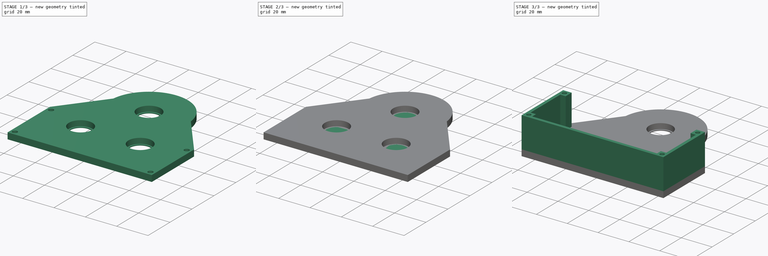
[diagram: build sequence overview — one tinted view per stage of 3, left to right]
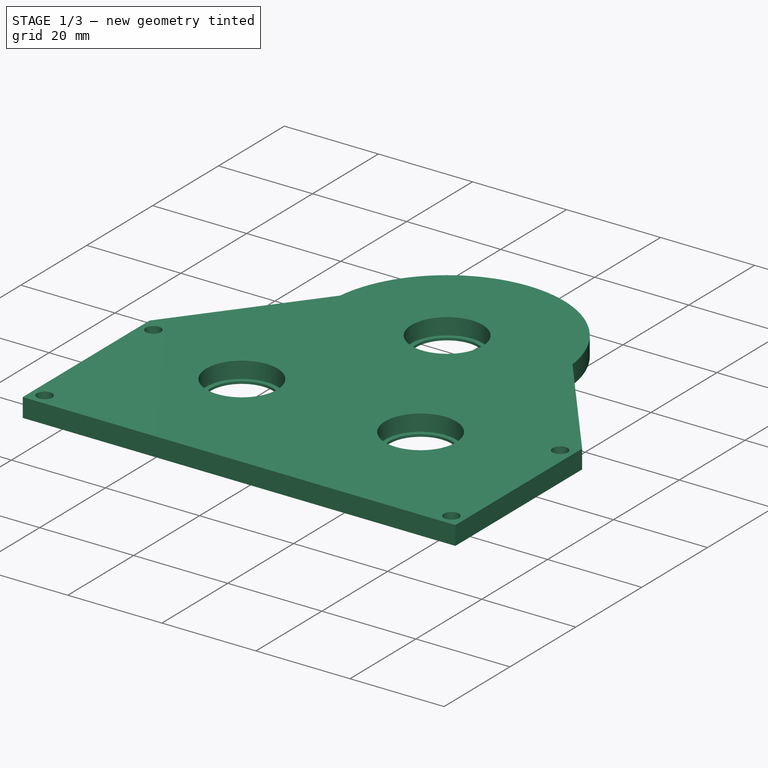
[diagram: stage 1 of 3 — iso view after this stage's code; geometry added in this stage tinted green]
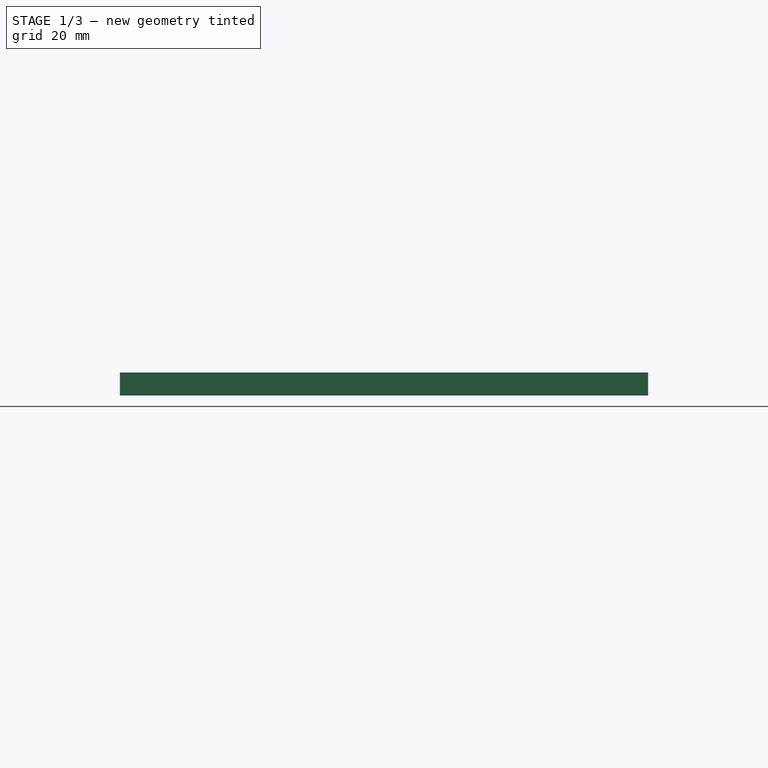
[diagram: stage 1 of 3 — front view after this stage's code; geometry added in this stage tinted green]
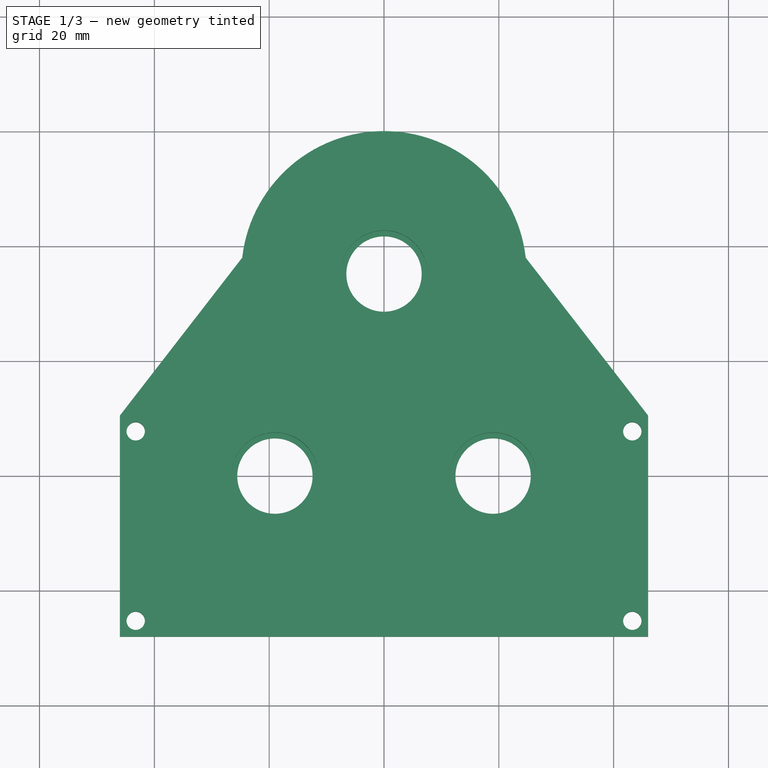
[diagram: stage 1 of 3 — top view after this stage's code; geometry added in this stage tinted green]
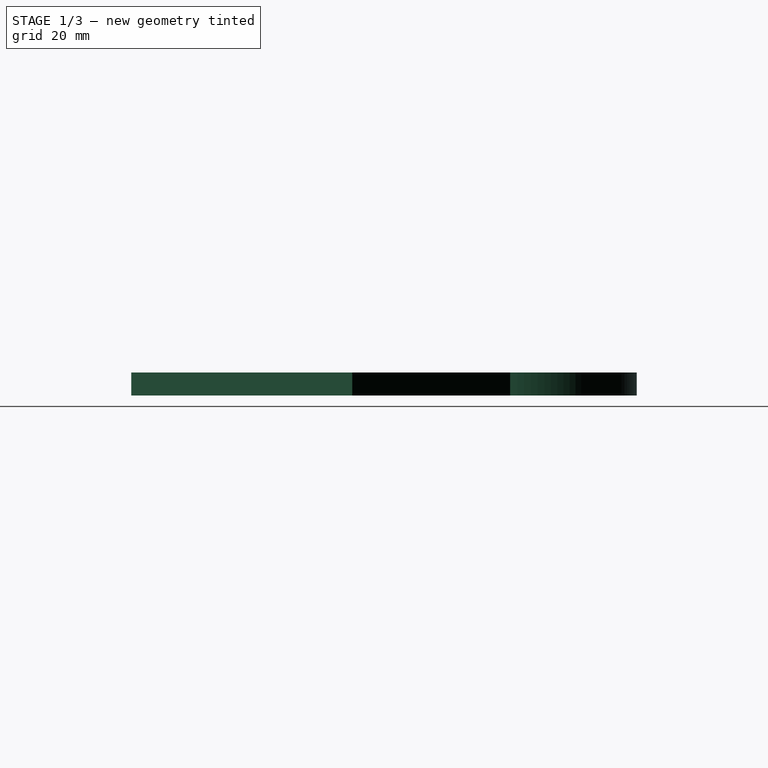
[diagram: stage 1 of 3 — right view after this stage's code; geometry added in this stage tinted green]
FCSTD DOCUMENT  (FreeCAD 0.20R29177 (Git))
Label: transmissionHolder1
License: All rights reserved
LicenseURL: http://en.wikipedia.org/wiki/All_rights_reserved
objects: Sketcher::SketchObject×5, PartDesign::Pocket×3, PartDesign::Pad×2, PartDesign::Body×2, Spreadsheet::Sheet×1, Part::Feature×1, PartDesign::FeatureBase×1
note: 19 computed .brp shape members not serialized (recipe doc carries the construction recipe); baked Part::Feature solids carry a one-line shape summary decoded from their .brp

FEATURE [PartDesign::Body] Body
  Group = -> [Sketch,Pad,Sketch001,Pocket,Sketch002,Pocket001,Sketch003,Pad001]
  Origin = -> Origin
  Tip = -> Pad001
FEATURE [Part::Feature] Pocket001001  label="Pocket001BasePlate001"
  shape: bbox 92 x 88.05 x 4 mm, 17 faces (baked)
FEATURE [PartDesign::FeatureBase] BaseFeature
  BaseFeature = -> Pocket001001
FEATURE [Sketcher::SketchObject] Sketch004
  ExternalGeometry = -> [BaseFeature]
  FullyConstrained = true
  MapMode = 5
  Placement = pos=(0,0,4) rot=(0,0,1;0rad)
  Support = -> [BaseFeature]
  expr: Constraints[10] = Spreadsheet.screwSqureWidth / 2
  expr: Constraints[11] = Spreadsheet.screwSqureWidth / 2
  expr: Constraints[3] = Spreadsheet.screwRPass
  expr: Constraints[4] = Spreadsheet.screwSqureWidth / 2
  expr: Constraints[5] = Spreadsheet.screwSqureWidth / 2
  expr: Constraints[6] = Spreadsheet.screwSqureWidth / 2
  expr: Constraints[7] = Spreadsheet.screwSqureWidth / 2
  expr: Constraints[8] = Spreadsheet.screwSqureWidth / 2
  expr: Constraints[9] = Spreadsheet.screwSqureWidth / 2
  sketch-geometry (4):
    g0: Circle CenterX=-43.25 CenterY=-25.25 CenterZ=0 NormalX=0 NormalY=0 NormalZ=1 AngleXU=0 Radius=1.6
    g1: Circle CenterX=-43.25 CenterY=7.75 CenterZ=0 NormalX=0 NormalY=0 NormalZ=1 AngleXU=0 Radius=1.6
    g2: Circle CenterX=43.25 CenterY=-25.25 CenterZ=0 NormalX=0 NormalY=0 NormalZ=1 AngleXU=0 Radius=1.6
    g3: Circle CenterX=43.25 CenterY=7.75 CenterZ=0 NormalX=0 NormalY=0 NormalZ=1 AngleXU=0 Radius=1.6
  constraints (12):
    c: Equal(g1,g0)
    c: Equal(g0,g3)
    c: Equal(g3,g2)
    c: Radius(g3) = 1.6
    c: DistanceY(g-5,g2) = 2.75
    c: DistanceY(g-4,g0) = 2.75
    c: DistanceY(g1,g-3) = 2.75
    c: DistanceY(g3,g-5) = 2.75
    c: DistanceX(g3,g-5) = 2.75
    c: DistanceX(g-3,g1) = 2.75
    c: DistanceX(g-4,g0) = 2.75
    c: DistanceX(g2,g-5) = 2.75
FEATURE [PartDesign::Pocket] Pocket001002
  BaseFeature = -> BaseFeature
  Direction = (0,0,-1)
  Length = 5
  Length2 = 5
  Profile = -> Sketch004
  ReferenceAxis = -> Sketch004 [N_Axis]
  Type = 0
FEATURE [PartDesign::Body] Body001
  BaseFeature = -> Pocket001001
  Group = -> [BaseFeature,Sketch004,Pocket001002]
  Origin = -> Origin001
  Tip = -> Pocket001002
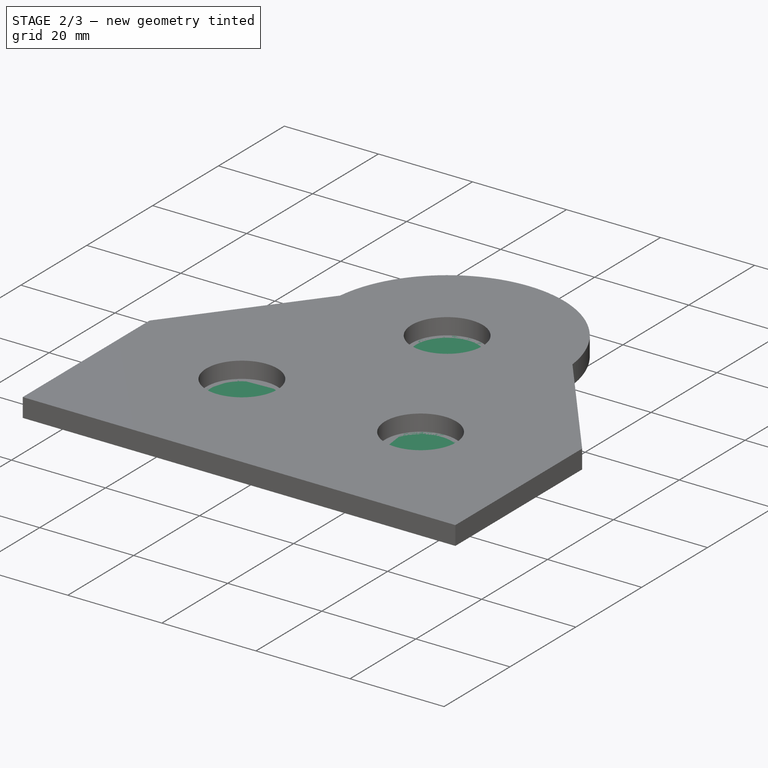
[diagram: stage 2 of 3 — iso view after this stage's code; geometry added in this stage tinted green]
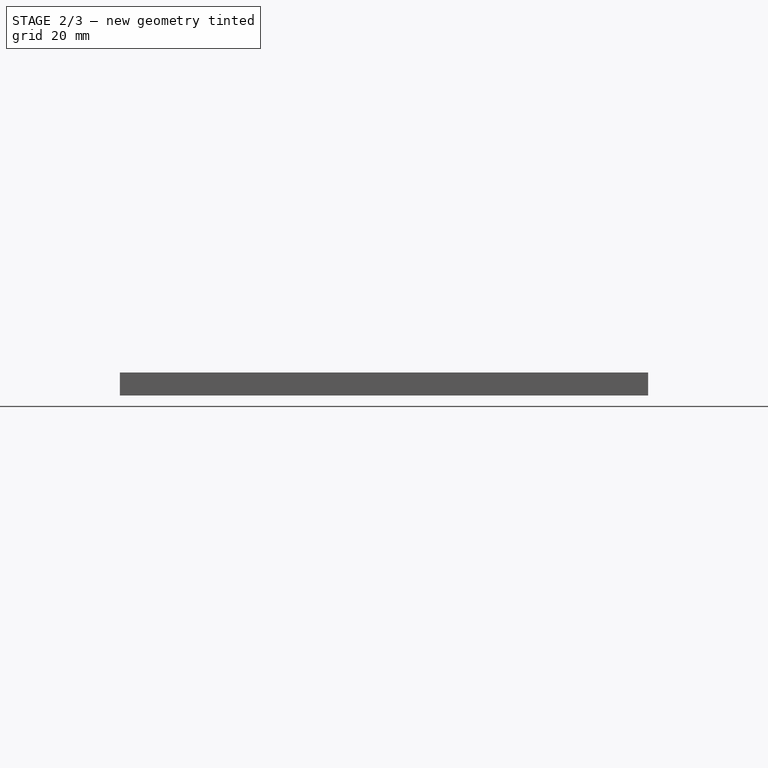
[diagram: stage 2 of 3 — front view after this stage's code; geometry added in this stage tinted green]
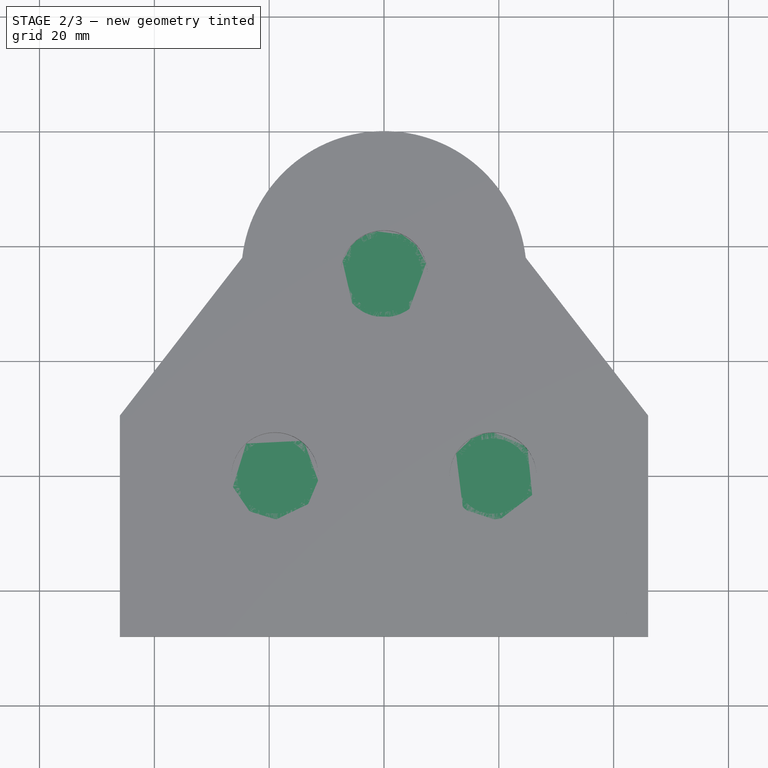
[diagram: stage 2 of 3 — top view after this stage's code; geometry added in this stage tinted green]
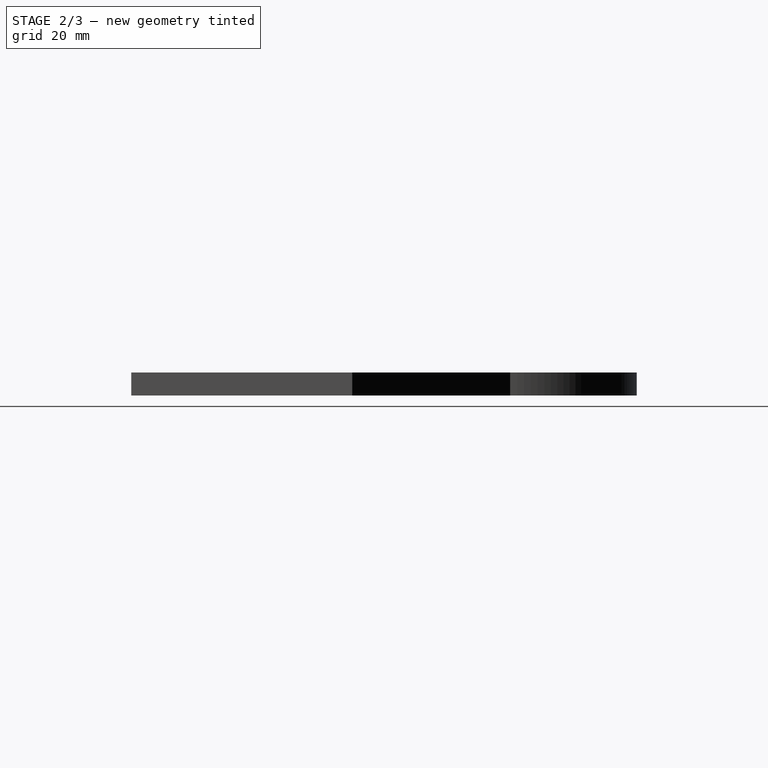
[diagram: stage 2 of 3 — right view after this stage's code; geometry added in this stage tinted green]
FEATURE [Sketcher::SketchObject] Sketch
  FullyConstrained = false
  MapMode = 5
  Support = -> [XY_Plane]
  expr: Constraints[37] = Spreadsheet.screwSqureWidth
  sketch-geometry (15):
    g0: Circle CenterX=0 CenterY=35.1994 CenterZ=0 NormalX=0 NormalY=0 NormalZ=1 AngleXU=0 Radius=17.5
    g1: Circle CenterX=19 CenterY=0 CenterZ=0 NormalX=0 NormalY=0 NormalZ=1 AngleXU=0 Radius=17.5
    g2: Circle CenterX=-19 CenterY=0 CenterZ=0 NormalX=0 NormalY=0 NormalZ=1 AngleXU=0 Radius=17.5
    g3: LineSegment StartX=0 StartY=35.1994 StartZ=0 EndX=19 EndY=0 EndZ=0
    g4: LineSegment StartX=0 StartY=35.1994 StartZ=0 EndX=-19 EndY=0 EndZ=0
    g5: LineSegment StartX=46 StartY=10.5 StartZ=0 EndX=46 EndY=-28 EndZ=0
    g6: LineSegment StartX=46 StartY=-28 StartZ=0 EndX=-46 EndY=-28 EndZ=0
    g7: LineSegment StartX=-46 StartY=-28 StartZ=0 EndX=-46 EndY=10.5 EndZ=0
    g8: ArcOfCircle CenterX=-0.00622902 CenterY=35.1994 CenterZ=0 NormalX=0 NormalY=0 NormalZ=1 AngleXU=0 Radius=24.85 StartAngle=0.112579 EndAngle=3.02865
    g9: LineSegment StartX=-46 StartY=10.5 StartZ=0 EndX=-24.6979 EndY=38 EndZ=0
    g10: LineSegment StartX=24.6865 StartY=37.9911 StartZ=0 EndX=46 EndY=10.5 EndZ=0
    g11: LineSegment StartX=-46 StartY=10.5 StartZ=0 EndX=-40.5 EndY=10.5 EndZ=0
    g12: LineSegment StartX=-40.5 StartY=10.5 StartZ=0 EndX=-40.5 EndY=4.05411 EndZ=0
    g13: LineSegment StartX=-40.5 StartY=4.05411 StartZ=0 EndX=-46 EndY=4.05411 EndZ=0
    g14: LineSegment StartX=-46 StartY=4.05411 StartZ=0 EndX=-46 EndY=10.5 EndZ=0
  constraints (38):
    c: Radius(g0) = 17.5
    c: Radius(g1) = 17.5
    c: Radius(g2) = 17.5
    c: DistanceX(g2,g1) = 38
    c: PointOnObject(g1,g-1)
    c: PointOnObject(g2,g-1)
    c: Coincident(g3,g0)
    c: Coincident(g3,g1)
    c: Coincident(g4,g3)
    c: Coincident(g4,g2)
    c: Distance(g3) = 40
    c: Coincident(g5,g6)
    c: Coincident(g6,g7)
    c: Vertical(g5)
    c: Vertical(g7)
    c: Coincident(g8,g9)
    c: Coincident(g8,g10)
    c: Equal(g3,g4)
    c: Coincident(g10,g5)
    c: Coincident(g9,g7)
    c: Equal(g5,g7)
    c: DistanceX(g6,g6) = 92
    c: Symmetric(g5,g6,g-2)
    c: DistanceY(g5,g-1) = 28
    c: Radius(g8) = 24.85
    c: DistanceY(g-1,g7) = 10.5
    c: DistanceY(g-1,g8) = 38
    c: Equal(g9,g10)
    c: Coincident(g11,g12)
    c: Coincident(g12,g13)
    c: Coincident(g13,g14)
    c: Coincident(g14,g11)
    c: Horizontal(g11)
    c: Horizontal(g13)
    c: Vertical(g12)
    c: Vertical(g14)
    c: Coincident(g11,g7)
    c: DistanceX(g11,g11) = 5.5
FEATURE [Spreadsheet::Sheet] Spreadsheet
  cells = A2=bearingSocketR; B2(bearingSocketR)=7.56; A3=topHoleY; B3(topHoleY)=35.2; A4=bottomHoleX; B4(bottomHoleX)=19; A5=bearingSocketOpenR; B5(bearingSocketOpenR)==B2 - 1; A6=sideWallWidth; B6(sideWallWidth)=2; A7=bottomWallWidth; B7(bottomWallWidth)=2; A8=screwSqureWidth; B8(screwSqureWidth)=5.5; A9=screwRTight; B9(screwRTight)=1.4; A10=screwRPass; B10(screwRPass)=1.6
FEATURE [PartDesign::Pad] Pad
  Direction = (0,0,1)
  Length = 4
  Length2 = 10
  Profile = -> Sketch
  ReferenceAxis = -> Sketch [N_Axis]
  Type = 0
FEATURE [Sketcher::SketchObject] Sketch001
  FullyConstrained = true
  MapMode = 5
  Placement = pos=(0,0,4) rot=(0,0,1;0rad)
  Support = -> [Pad]
  expr: Constraints[3] = Spreadsheet.bottomHoleX
  expr: Constraints[4] = Spreadsheet.bottomHoleX
  expr: Constraints[5] = Spreadsheet.topHoleY
  expr: Constraints[6] = Spreadsheet.bearingSocketR
  sketch-geometry (3):
    g0: Circle CenterX=0 CenterY=35.2 CenterZ=0 NormalX=0 NormalY=0 NormalZ=1 AngleXU=0 Radius=7.56
    g1: Circle CenterX=-19 CenterY=0 CenterZ=0 NormalX=0 NormalY=0 NormalZ=1 AngleXU=0 Radius=7.56
    g2: Circle CenterX=19 CenterY=0 CenterZ=0 NormalX=0 NormalY=0 NormalZ=1 AngleXU=0 Radius=7.56
  constraints (9):
    c: PointOnObject(g0,g-2)
    c: PointOnObject(g1,g-1)
    c: PointOnObject(g2,g-1)
    c: DistanceX(g-1,g2) = 19
    c: DistanceX(g1,g-1) = 19
    c: DistanceY(g-1,g0) = 35.2
    c: Radius(g0) = 7.56
    c: Equal(g0,g1)
    c: Equal(g2,g0)
FEATURE [PartDesign::Pocket] Pocket
  BaseFeature = -> Pad
  Direction = (0,0,-1)
  Length = 3.5
  Length2 = 5
  Profile = -> Sketch001
  ReferenceAxis = -> Sketch001 [N_Axis]
  Type = 0
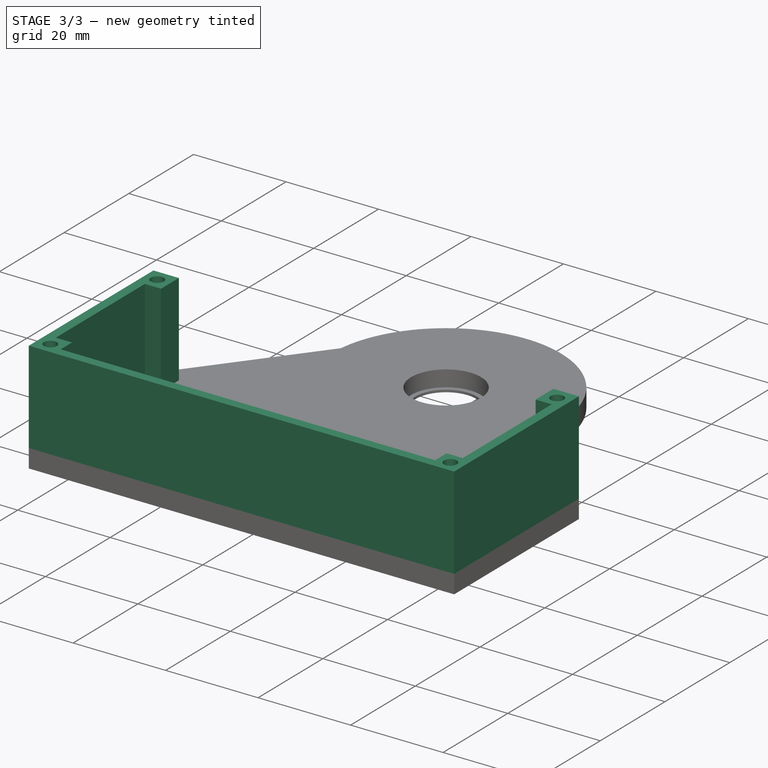
[diagram: stage 3 of 3 — iso view after this stage's code; geometry added in this stage tinted green]
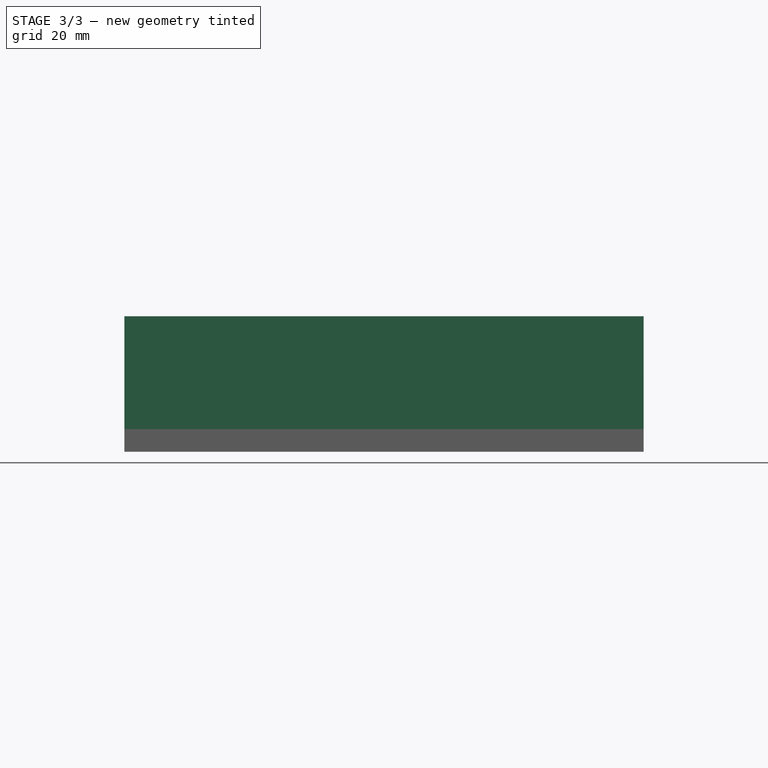
[diagram: stage 3 of 3 — front view after this stage's code; geometry added in this stage tinted green]
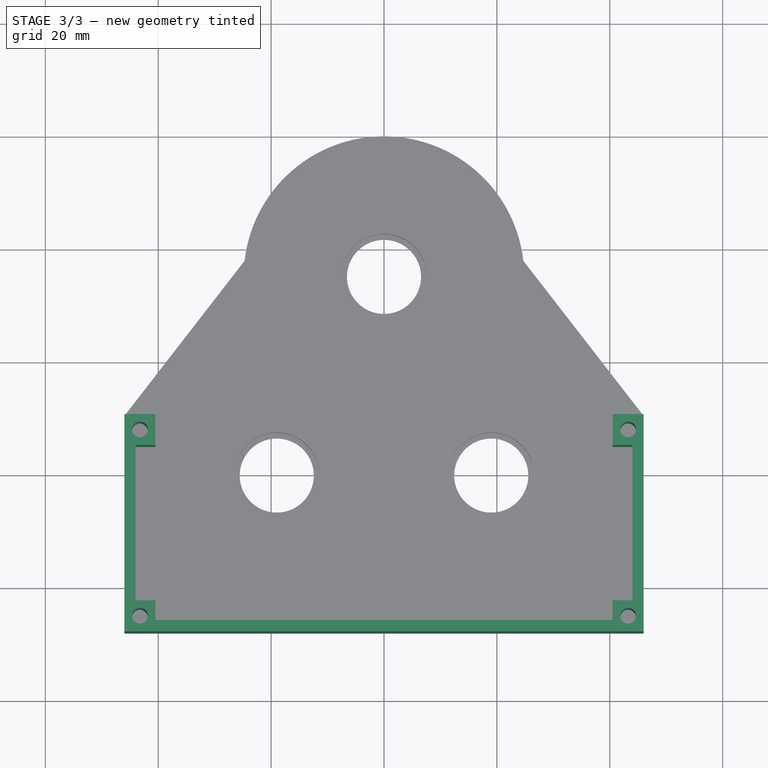
[diagram: stage 3 of 3 — top view after this stage's code; geometry added in this stage tinted green]
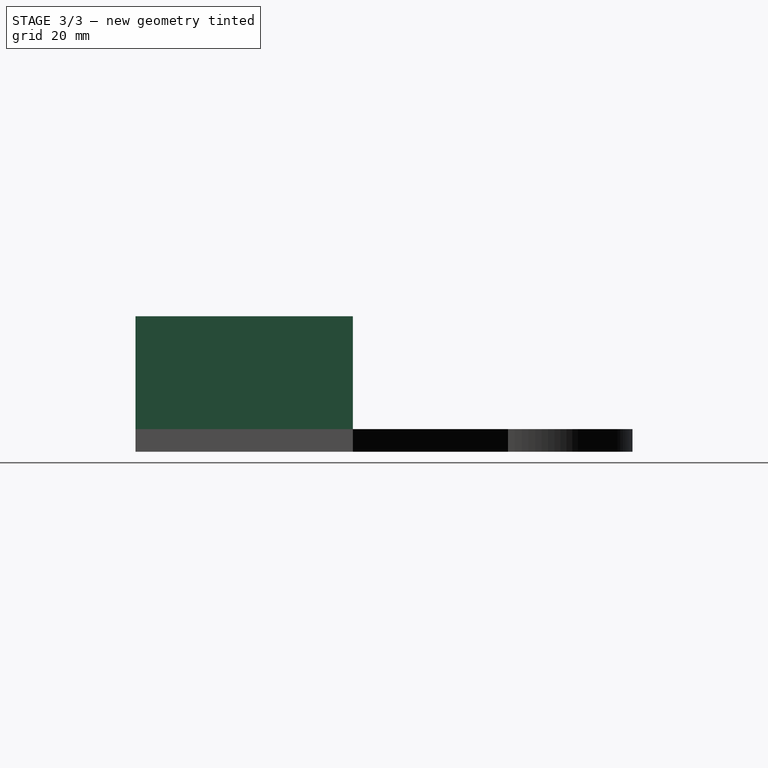
[diagram: stage 3 of 3 — right view after this stage's code; geometry added in this stage tinted green]
FEATURE [Sketcher::SketchObject] Sketch002  label="Sketch002BearingPath"
  FullyConstrained = true
  MapMode = 5
  Placement = pos=(0,0,4) rot=(0,0,1;0rad)
  Support = -> [Pocket]
  expr: Constraints[3] = Spreadsheet.topHoleY
  expr: Constraints[4] = Spreadsheet.bottomHoleX
  expr: Constraints[5] = Spreadsheet.bottomHoleX
  expr: Constraints[8] = Spreadsheet.bearingSocketOpenR
  sketch-geometry (3):
    g0: Circle CenterX=-19 CenterY=0 CenterZ=0 NormalX=0 NormalY=0 NormalZ=1 AngleXU=0 Radius=6.56
    g1: Circle CenterX=19 CenterY=0 CenterZ=0 NormalX=0 NormalY=0 NormalZ=1 AngleXU=0 Radius=6.56
    g2: Circle CenterX=0 CenterY=35.2 CenterZ=0 NormalX=0 NormalY=0 NormalZ=1 AngleXU=0 Radius=6.56
  constraints (9):
    c: PointOnObject(g0,g-1)
    c: PointOnObject(g1,g-1)
    c: PointOnObject(g2,g-2)
    c: DistanceY(g-1,g2) = 35.2
    c: DistanceX(g-1,g1) = 19
    c: DistanceX(g0,g-1) = 19
    c: Equal(g2,g0)
    c: Equal(g1,g2)
    c: Radius(g2) = 6.56
FEATURE [PartDesign::Pocket] Pocket001  label="Pocket001BasePlate"
  BaseFeature = -> Pocket
  Direction = (0,0,-1)
  Length = 5
  Length2 = 5
  Profile = -> Sketch002
  ReferenceAxis = -> Sketch002 [N_Axis]
  Type = 0
FEATURE [Sketcher::SketchObject] Sketch003  label="Sketch003ScrewHoles"
  ExternalGeometry = -> [Pocket001]
  FullyConstrained = false
  MapMode = 5
  Placement = pos=(0,0,4) rot=(0,0,1;0rad)
  Support = -> [Pocket001]
  expr: Constraints[20] = Spreadsheet.screwSqureWidth
  expr: Constraints[21] = Spreadsheet.screwSqureWidth
  expr: Constraints[25] = Spreadsheet.screwSqureWidth
  expr: Constraints[26] = Spreadsheet.screwSqureWidth
  expr: Constraints[36] = Spreadsheet.screwSqureWidth
  expr: Constraints[37] = Spreadsheet.screwSqureWidth
  expr: Constraints[45] = Spreadsheet.screwSqureWidth
  expr: Constraints[46] = Spreadsheet.screwSqureWidth
  expr: Constraints[50] = Spreadsheet.screwRTight
  expr: Constraints[51] = Spreadsheet.screwSqureWidth / 2
  expr: Constraints[52] = Spreadsheet.screwSqureWidth / 2
  expr: Constraints[54] = Spreadsheet.screwSqureWidth / 2
  expr: Constraints[58] = Spreadsheet.screwSqureWidth / 2
  expr: Constraints[8] = Spreadsheet.sideWallWidth
  sketch-geometry (22):
    g0: LineSegment StartX=-46 StartY=10.5 StartZ=0 EndX=-44 EndY=10.5 EndZ=0
    g1: LineSegment StartX=-44 StartY=5 StartZ=0 EndX=-44 EndY=-22.5 EndZ=0
    g2: LineSegment StartX=46 StartY=10.5 StartZ=0 EndX=44 EndY=10.5 EndZ=0
    g3: LineSegment StartX=44 StartY=5 StartZ=0 EndX=44 EndY=-22.5 EndZ=0
    g4: LineSegment StartX=-40.5 StartY=-26.0099 StartZ=0 EndX=40.5 EndY=-26.0099 EndZ=0
    g5: LineSegment StartX=-46 StartY=10.5 StartZ=0 EndX=-46 EndY=-28 EndZ=0
    g6: LineSegment StartX=-46 StartY=-28 StartZ=0 EndX=46 EndY=-28 EndZ=0
    g7: LineSegment StartX=46 StartY=-28 StartZ=0 EndX=46 EndY=10.5 EndZ=0
    g8: LineSegment StartX=-44 StartY=-22.5 StartZ=0 EndX=-40.5 EndY=-22.5 EndZ=0
    g9: LineSegment StartX=-40.5 StartY=-22.5 StartZ=0 EndX=-40.5 EndY=-26.0099 EndZ=0
    g10: LineSegment StartX=44 StartY=-22.5 StartZ=0 EndX=40.5 EndY=-22.5 EndZ=0
    g11: LineSegment StartX=40.5 StartY=-22.5 StartZ=0 EndX=40.5 EndY=-26.0099 EndZ=0
    g12: LineSegment StartX=-44 StartY=10.5 StartZ=0 EndX=-40.5 EndY=10.5 EndZ=0
    g13: LineSegment StartX=-40.5 StartY=10.5 StartZ=0 EndX=-40.5 EndY=5 EndZ=0
    g14: LineSegment StartX=-40.5 StartY=5 StartZ=0 EndX=-44 EndY=5 EndZ=0
    g15: LineSegment StartX=44 StartY=10.5 StartZ=0 EndX=40.5 EndY=10.5 EndZ=0
    g16: LineSegment StartX=40.5 StartY=10.5 StartZ=0 EndX=40.5 EndY=5 EndZ=0
    g17: LineSegment StartX=40.5 StartY=5 StartZ=0 EndX=44 EndY=5 EndZ=0
    g18: Circle CenterX=-43.25 CenterY=-25.25 CenterZ=0 NormalX=0 NormalY=0 NormalZ=1 AngleXU=0 Radius=1.4
    g19: Circle CenterX=43.25 CenterY=-25.25 CenterZ=0 NormalX=0 NormalY=0 NormalZ=1 AngleXU=0 Radius=1.4
    g20: Circle CenterX=43.25 CenterY=7.75 CenterZ=0 NormalX=0 NormalY=0 NormalZ=1 AngleXU=0 Radius=1.4
    g21: Circle CenterX=-43.25 CenterY=7.75 CenterZ=0 NormalX=0 NormalY=0 NormalZ=1 AngleXU=0 Radius=1.4
  constraints (59):
    c: Horizontal(g0)
    c: Vertical(g1)
    c: Coincident(g0,g-3)
    c: Horizontal(g2)
    c: Vertical(g3)
    c: Coincident(g2,g-5)
    c: Horizontal(g4)
    c: Equal(g0,g2)
    c: DistanceX(g0,g0) = 2
    c: Coincident(g5,g0)
    c: Coincident(g5,g-4)
    c: Coincident(g6,g5)
    c: Coincident(g6,g-5)
    c: Coincident(g7,g6)
    c: Coincident(g7,g2)
    c: Horizontal(g8)
    c: Coincident(g9,g8)
    c: Vertical(g9)
    c: Coincident(g1,g8)
    c: Coincident(g4,g9)
    c: DistanceX(g5,g8) = 5.5
    c: DistanceY(g5,g8) = 5.5
    c: Horizontal(g10)
    c: Coincident(g11,g10)
    c: Vertical(g11)
    c: DistanceX(g10,g6) = 5.5
    c: DistanceY(g6,g10) = 5.5
    c: Coincident(g3,g10)
    c: Coincident(g4,g11)
    c: Coincident(g12,g0)
    c: Horizontal(g12)
    c: Coincident(g13,g12)
    c: Vertical(g13)
    c: Coincident(g14,g13)
    c: Horizontal(g14)
    c: Coincident(g14,g1)
    c: DistanceX(g0,g13) = 5.5
    c: DistanceY(g13,g0) = 5.5
    c: Coincident(g15,g2)
    c: Horizontal(g15)
    c: Coincident(g16,g15)
    c: Vertical(g16)
    c: Coincident(g17,g16)
    c: Horizontal(g17)
    c: Coincident(g3,g17)
    c: DistanceX(g16,g2) = 5.5
    c: DistanceY(g16,g2) = 5.5
    c: Equal(g21,g18)
    c: Equal(g18,g19)
    c: Equal(g19,g20)
    c: Radius(g20) = 1.4
    c: DistanceY(g5,g18) = 2.75
    c: DistanceX(g5,g18) = 2.75
    c: DistanceY(g19,g18) = 0
    c: DistanceX(g19,g6) = 2.75
    c: DistanceX(g20,g19) = 0
    c: DistanceX(g18,g21) = 0
    c: DistanceY(g20,g21) = 0
    c: DistanceY(g20,g2) = 2.75
FEATURE [PartDesign::Pad] Pad001
  BaseFeature = -> Pocket001
  Direction = (0,0,1)
  Length = 20
  Length2 = 10
  Profile = -> Sketch003
  ReferenceAxis = -> Sketch003 [N_Axis]
  Type = 0
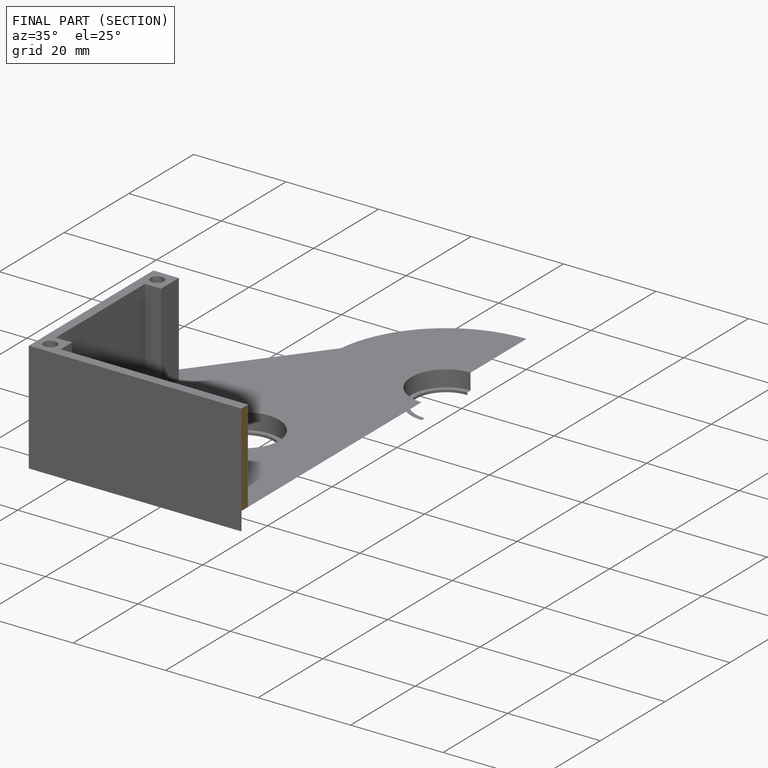
[diagram: finished part — half-section view (interior)]
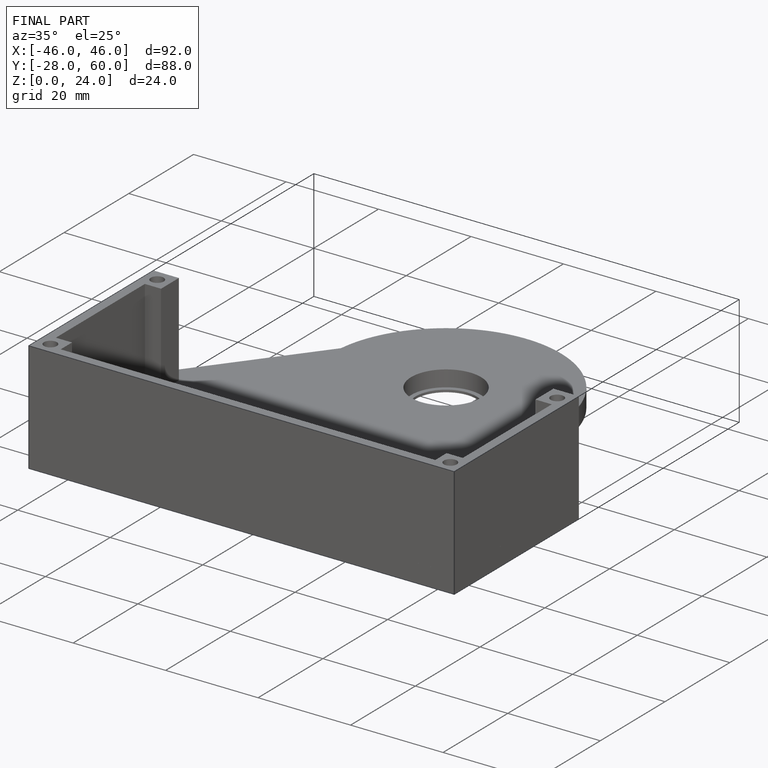
[diagram: finished part — iso view with bounding-box wireframe]
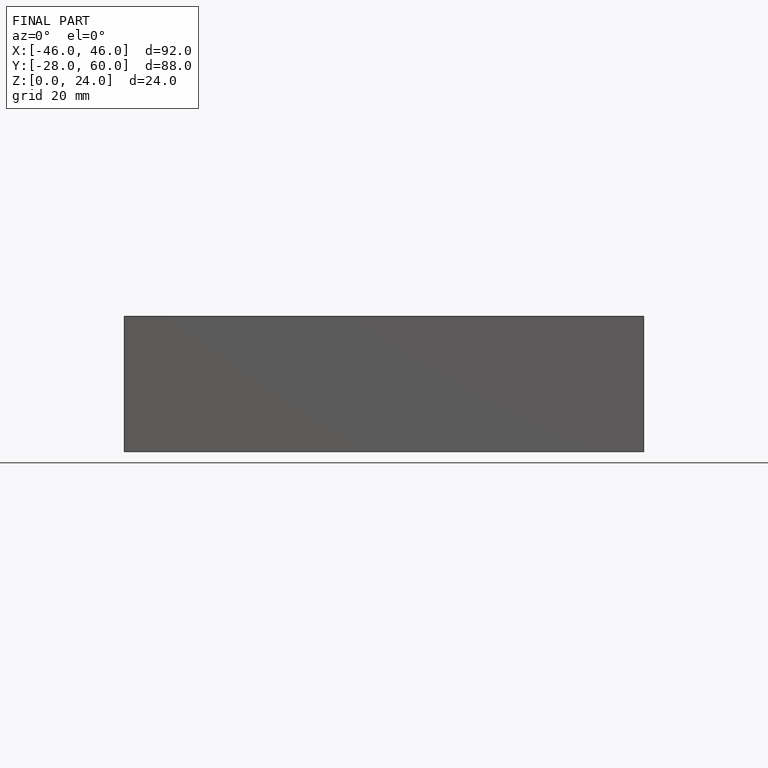
[diagram: finished part — front view with bounding-box wireframe]
